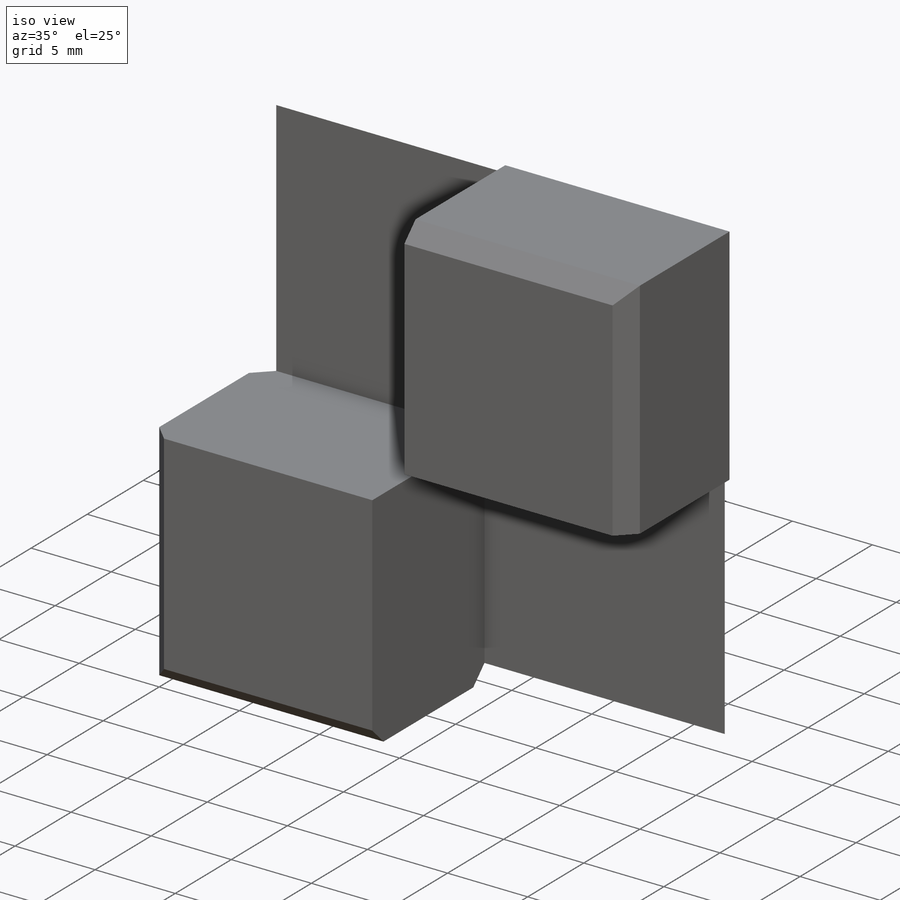
[diagram: iso view]
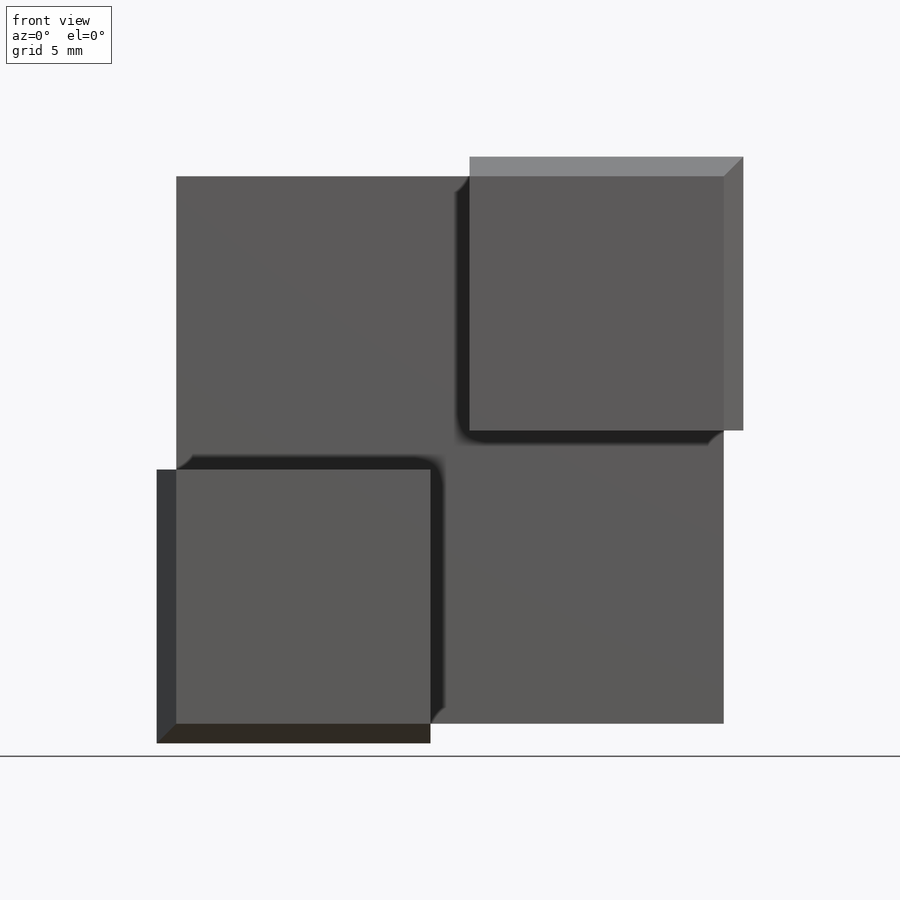
[diagram: front view]
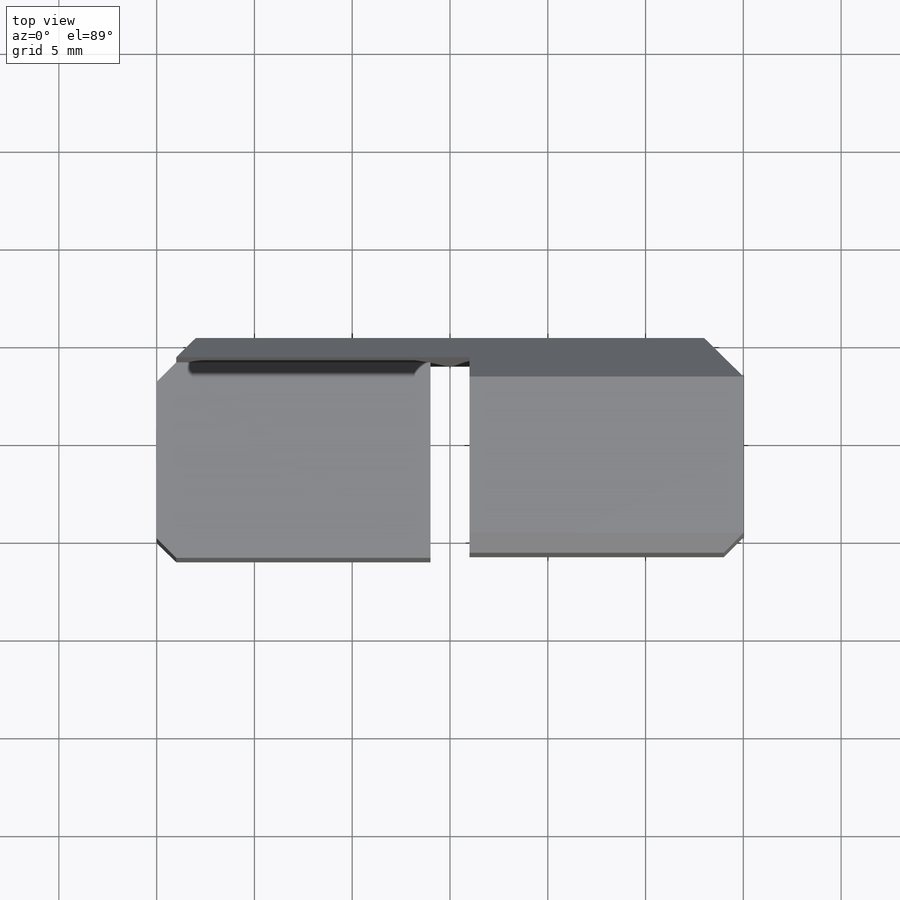
[diagram: top view]
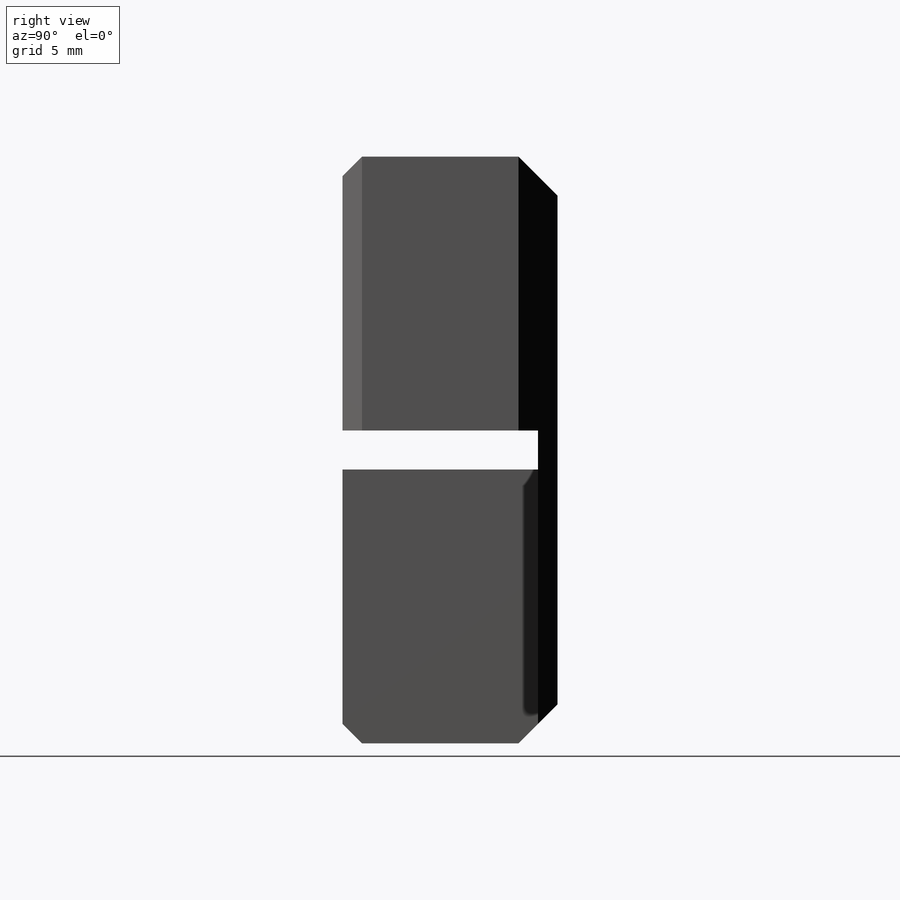
[diagram: right view]
SOLIDWORKS PART (.sldprt)
format: sldprt  version: not decoded by parser v0  size: 206,848 bytes
history: native  units: mm
features: sketch x3, extrude x2, chamfer x2, material x1, cut_extrude x1 (+12 scaffold rows collapsed)
feature tree (21):
  scaffold x12  (default folders/planes/origin — collapsed)
  material  "Material <not specified>"
  sketch  "Sketch1"  dims[D1=30.0mm D2=30.0mm]
  extrude  "Boss-Extrude1"  Depth=1mm
  sketch  "Sketch2"  dims[c1.D1=1.0mm c1.D2=1.0mm c1.D3=1.0mm c1.D4=1.0mm c1.D5=1.0mm c1.D6=1.0mm c1.D7=1.0mm c1.D8=1.0mm c2.D5=1.0mm]
  extrude  "Boss-Extrude2"  Depth=10mm
  chamfer  "Chamfer1"  Distance=2mm Angle=45deg
  chamfer  "Chamfer2"  Distance=1mm Angle=45deg
  sketch  "Sketch3"
  cut_extrude  "Cut-Extrude1"  Depth=0.6mm
decode coverage: 7 of 8 modeling features carry decoded parameters
note: suppression state not decoded; provenance and decode notes live in map.json
